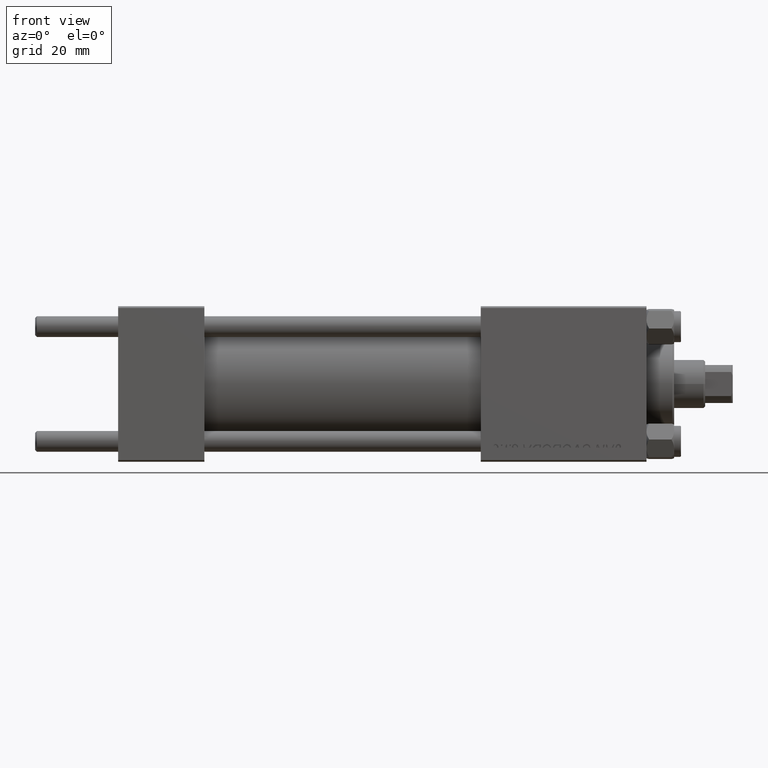
[diagram: clean part render]
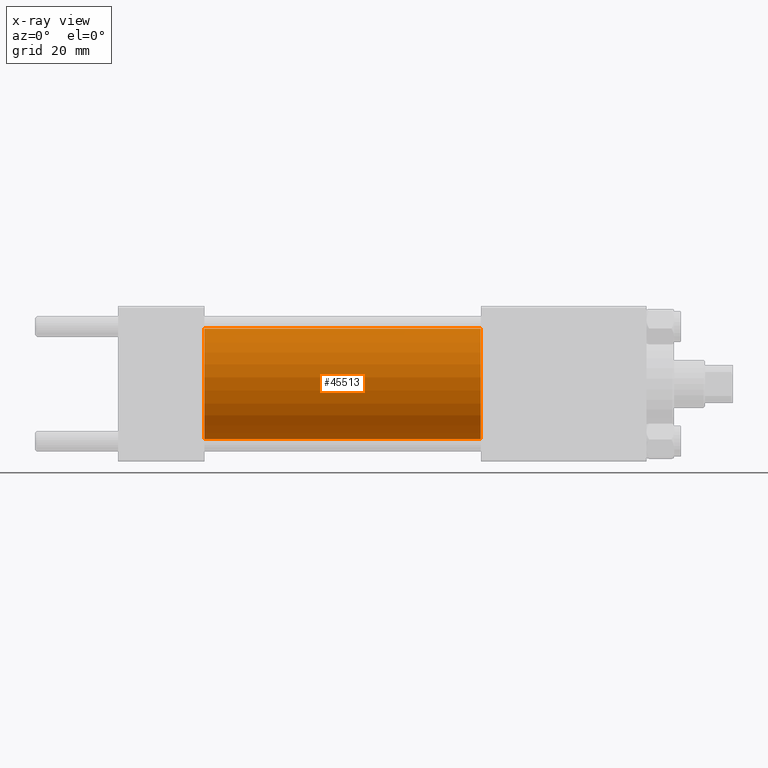
[diagram: x-ray — body ghosted, one internal face saturated and labeled with its STEP entity id]
A machine part, front view, then the same camera in x-ray: the body is ghosted and one INTERNAL B-rep face — a face not visible from any outside direction — is saturated and labeled: STEP entity #45513.
In plain terms, the highlighted cylindrical surface (partial cylindrical patch) has radius 16 mm, axis along (-1, -0, -0).
Its self-contained STEP definition (entity closure, byte-faithful):
#1342 = DIRECTION ( 'NONE',  ( 0.000000000000000000, 0.000000000000000000, -1.000000000000000000 ) ) ;
#3731 = LINE ( 'NONE', #34571, #21648 ) ;
#4192 = DIRECTION ( 'NONE',  ( 0.000000000000000000, 0.000000000000000000, -1.000000000000000000 ) ) ;
#6078 = CARTESIAN_POINT ( 'NONE',  ( 25.00000000000000000, 0.000000000000000000, 16.00000000000000000 ) ) ;
#7007 = DIRECTION ( 'NONE',  ( -1.000000000000000000, -0.000000000000000000, -0.000000000000000000 ) ) ;
#9447 = CARTESIAN_POINT ( 'NONE',  ( 105.0000000000000142, 0.000000000000000000, 0.000000000000000000 ) ) ;
#11446 = EDGE_CURVE ( 'NONE', #34302, #29154, #28887, .T. ) ;
#13430 = EDGE_CURVE ( 'NONE', #29154, #34659, #3731, .T. ) ;
#15609 = DIRECTION ( 'NONE',  ( -1.000000000000000000, -0.000000000000000000, -0.000000000000000000 ) ) ;
#15963 = LINE ( 'NONE', #16214, #27534 ) ;
#16214 = CARTESIAN_POINT ( 'NONE',  ( 105.0000000000000142, 0.000000000000000000, 16.00000000000000000 ) ) ;
#20834 = CARTESIAN_POINT ( 'NONE',  ( 105.0000000000000142, 1.959434878635765131E-15, -16.00000000000000000 ) ) ;
#21648 = VECTOR ( 'NONE', #15609, 1000.000000000000000 ) ;
#21747 = EDGE_CURVE ( 'NONE', #46638, #34659, #46856, .T. ) ;
#23961 = EDGE_CURVE ( 'NONE', #34302, #46638, #15963, .T. ) ;
#25054 = AXIS2_PLACEMENT_3D ( 'NONE', #35780, #31249, #4192 ) ;
#26447 = DIRECTION ( 'NONE',  ( 0.000000000000000000, 0.000000000000000000, 1.000000000000000000 ) ) ;
#27534 = VECTOR ( 'NONE', #35422, 1000.000000000000000 ) ;
#28887 = CIRCLE ( 'NONE', #30495, 16.00000000000000000 ) ;
#29115 = ORIENTED_EDGE ( 'NONE', *, *, #11446, .T. ) ;
#29154 = VERTEX_POINT ( 'NONE', #20834 ) ;
#30495 = AXIS2_PLACEMENT_3D ( 'NONE', #9447, #32441, #1342 ) ;
#31249 = DIRECTION ( 'NONE',  ( 1.000000000000000000, 0.000000000000000000, 0.000000000000000000 ) ) ;
#31317 = ORIENTED_EDGE ( 'NONE', *, *, #21747, .F. ) ;
#31974 = CARTESIAN_POINT ( 'NONE',  ( 25.00000000000000000, 1.959434878635765131E-15, -16.00000000000000000 ) ) ;
#32441 = DIRECTION ( 'NONE',  ( 1.000000000000000000, 0.000000000000000000, 0.000000000000000000 ) ) ;
#33289 = CYLINDRICAL_SURFACE ( 'NONE', #34320, 16.00000000000000000 ) ;
#33540 = CARTESIAN_POINT ( 'NONE',  ( 105.0000000000000142, 0.000000000000000000, 0.000000000000000000 ) ) ;
#34302 = VERTEX_POINT ( 'NONE', #44979 ) ;
#34320 = AXIS2_PLACEMENT_3D ( 'NONE', #33540, #7007, #26447 ) ;
#34571 = CARTESIAN_POINT ( 'NONE',  ( 105.0000000000000142, 1.959434878635765131E-15, -16.00000000000000000 ) ) ;
#34659 = VERTEX_POINT ( 'NONE', #31974 ) ;
#35422 = DIRECTION ( 'NONE',  ( -1.000000000000000000, -0.000000000000000000, -0.000000000000000000 ) ) ;
#35756 = ORIENTED_EDGE ( 'NONE', *, *, #23961, .F. ) ;
#35780 = CARTESIAN_POINT ( 'NONE',  ( 25.00000000000000000, 0.000000000000000000, 0.000000000000000000 ) ) ;
#37088 = FACE_OUTER_BOUND ( 'NONE', #41254, .T. ) ;
#41254 = EDGE_LOOP ( 'NONE', ( #29115, #48266, #31317, #35756 ) ) ;
#44979 = CARTESIAN_POINT ( 'NONE',  ( 105.0000000000000142, 0.000000000000000000, 16.00000000000000000 ) ) ;
#45513 = ADVANCED_FACE ( 'NONE', ( #37088 ), #33289, .F. ) ;
#46638 = VERTEX_POINT ( 'NONE', #6078 ) ;
#46856 = CIRCLE ( 'NONE', #25054, 16.00000000000000000 ) ;
#48266 = ORIENTED_EDGE ( 'NONE', *, *, #13430, .T. ) ;